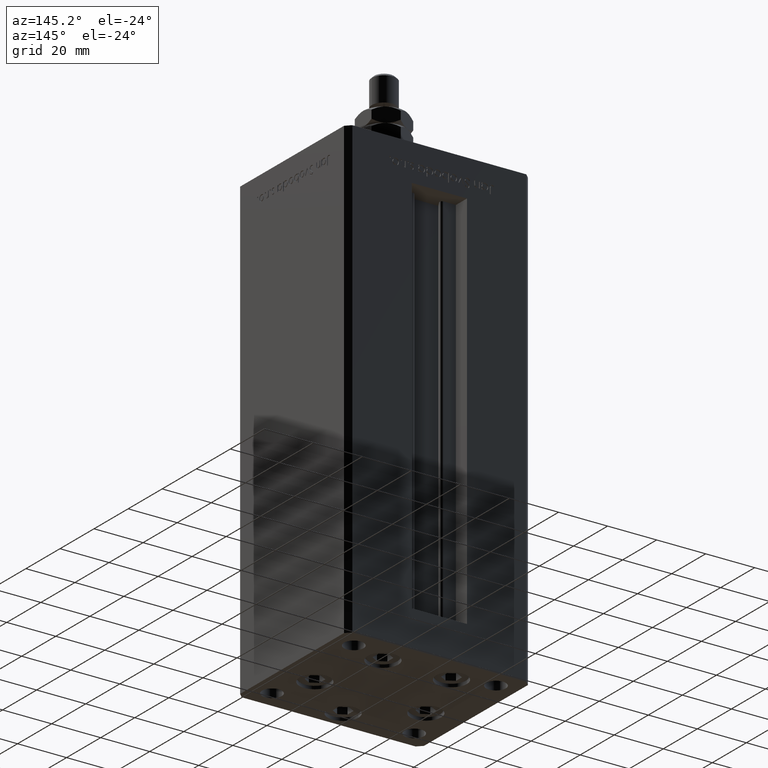
[diagram: clean part render]
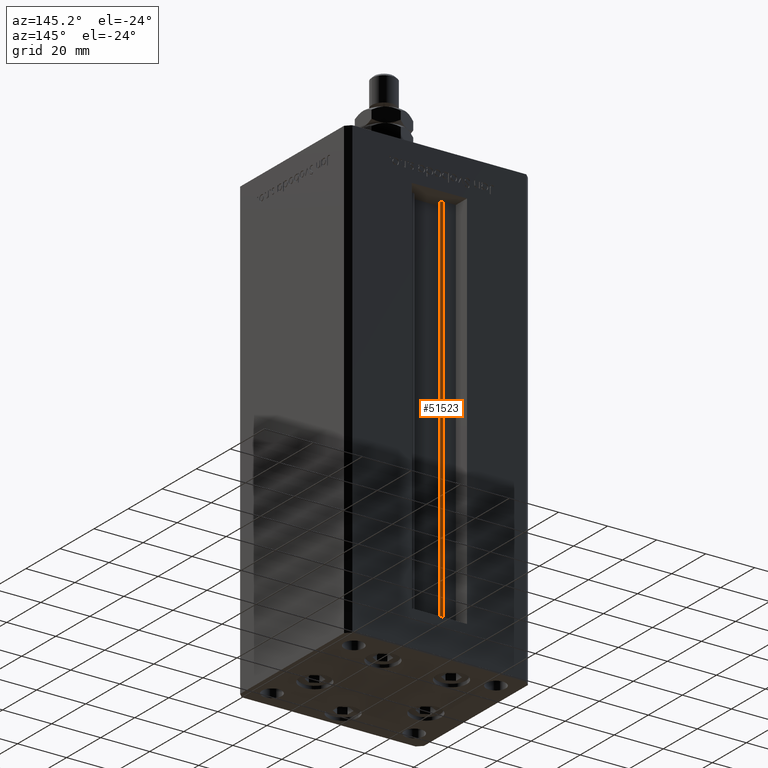
[diagram: same view with one face highlighted and labeled with its STEP entity id]
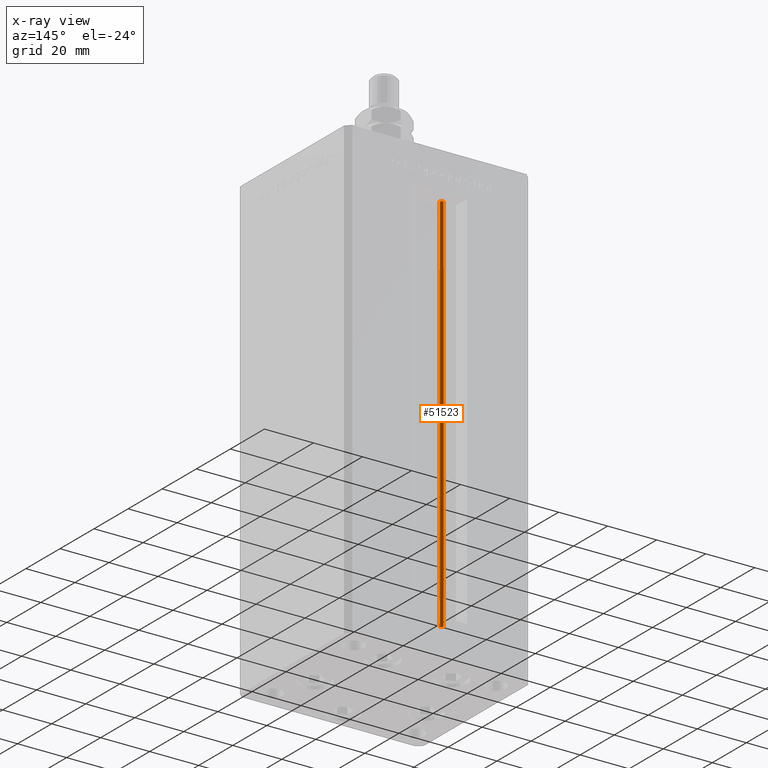
[diagram: x-ray of the same camera — body ghosted, the highlighted face saturated]
A machine part, auxiliary view. The second image highlights one B-rep face of the part: STEP entity #51523.
The next image is the same camera in x-ray: the body ghosted, the highlighted face saturated — about 0% of this face is hidden behind the body in this view.
In plain terms, the highlighted cylindrical surface (edge-blend (fillet) strip) has radius 0.9333 mm, axis along (0, 0, 1).
Its self-contained STEP definition (entity closure, byte-faithful):
#99 = VERTEX_POINT ( 'NONE', #3633 ) ;
#2556 = DIRECTION ( 'NONE',  ( -0.000000000000000000, -0.000000000000000000, -1.000000000000000000 ) ) ;
#2747 = DIRECTION ( 'NONE',  ( -0.000000000000000000, -0.000000000000000000, 1.000000000000000000 ) ) ;
#3248 = CARTESIAN_POINT ( 'NONE',  ( -6.183333333334001480, 25.06666666666599141, 0.000000000000000000 ) ) ;
#3633 = CARTESIAN_POINT ( 'NONE',  ( -5.250000000000000000, 25.06666666666599141, 156.0000000000000000 ) ) ;
#3887 = VERTEX_POINT ( 'NONE', #37117 ) ;
#7519 = CARTESIAN_POINT ( 'NONE',  ( -5.250000000000000000, 25.06666666666599141, 0.000000000000000000 ) ) ;
#7848 = ORIENTED_EDGE ( 'NONE', *, *, #32218, .T. ) ;
#7862 = DIRECTION ( 'NONE',  ( -0.000000000000000000, -0.000000000000000000, 1.000000000000000000 ) ) ;
#8029 = CIRCLE ( 'NONE', #16682, 0.9333333333340008142 ) ;
#11290 = AXIS2_PLACEMENT_3D ( 'NONE', #3248, #7862, #52966 ) ;
#11466 = CARTESIAN_POINT ( 'NONE',  ( -5.250000000000000000, 25.06666666666599141, 0.000000000000000000 ) ) ;
#13042 = DIRECTION ( 'NONE',  ( 1.000000000000000000, 0.000000000000000000, 0.000000000000000000 ) ) ;
#13394 = ORIENTED_EDGE ( 'NONE', *, *, #31658, .F. ) ;
#15055 = VECTOR ( 'NONE', #2747, 1000.000000000000000 ) ;
#16682 = AXIS2_PLACEMENT_3D ( 'NONE', #45370, #33667, #13042 ) ;
#18716 = EDGE_CURVE ( 'NONE', #31910, #99, #8029, .T. ) ;
#21417 = EDGE_CURVE ( 'NONE', #40454, #99, #28039, .T. ) ;
#22622 = CARTESIAN_POINT ( 'NONE',  ( -6.183333333334001480, 25.99999999999999289, 156.0000000000000000 ) ) ;
#28039 = LINE ( 'NONE', #11466, #15055 ) ;
#28247 = ORIENTED_EDGE ( 'NONE', *, *, #18716, .T. ) ;
#29061 = FACE_OUTER_BOUND ( 'NONE', #41711, .T. ) ;
#30613 = ORIENTED_EDGE ( 'NONE', *, *, #21417, .F. ) ;
#31381 = DIRECTION ( 'NONE',  ( 1.000000000000000000, 0.000000000000000000, 0.000000000000000000 ) ) ;
#31658 = EDGE_CURVE ( 'NONE', #3887, #40454, #53491, .T. ) ;
#31910 = VERTEX_POINT ( 'NONE', #22622 ) ;
#32218 = EDGE_CURVE ( 'NONE', #3887, #31910, #51873, .T. ) ;
#33667 = DIRECTION ( 'NONE',  ( 0.000000000000000000, 0.000000000000000000, -1.000000000000000000 ) ) ;
#37117 = CARTESIAN_POINT ( 'NONE',  ( -6.183333333334001480, 25.99999999999999289, 0.000000000000000000 ) ) ;
#40454 = VERTEX_POINT ( 'NONE', #7519 ) ;
#40732 = CYLINDRICAL_SURFACE ( 'NONE', #11290, 0.9333333333340008142 ) ;
#41711 = EDGE_LOOP ( 'NONE', ( #30613, #13394, #7848, #28247 ) ) ;
#43724 = DIRECTION ( 'NONE',  ( -0.000000000000000000, -0.000000000000000000, 1.000000000000000000 ) ) ;
#44794 = AXIS2_PLACEMENT_3D ( 'NONE', #52006, #2556, #31381 ) ;
#45370 = CARTESIAN_POINT ( 'NONE',  ( -6.183333333334001480, 25.06666666666599141, 156.0000000000000000 ) ) ;
#48621 = CARTESIAN_POINT ( 'NONE',  ( -6.183333333334001480, 25.99999999999999289, 0.000000000000000000 ) ) ;
#51523 = ADVANCED_FACE ( 'NONE', ( #29061 ), #40732, .T. ) ;
#51873 = LINE ( 'NONE', #48621, #52586 ) ;
#52006 = CARTESIAN_POINT ( 'NONE',  ( -6.183333333334001480, 25.06666666666599141, 0.000000000000000000 ) ) ;
#52586 = VECTOR ( 'NONE', #43724, 1000.000000000000000 ) ;
#52966 = DIRECTION ( 'NONE',  ( 1.000000000000000000, 0.000000000000000000, 0.000000000000000000 ) ) ;
#53491 = CIRCLE ( 'NONE', #44794, 0.9333333333340008142 ) ;